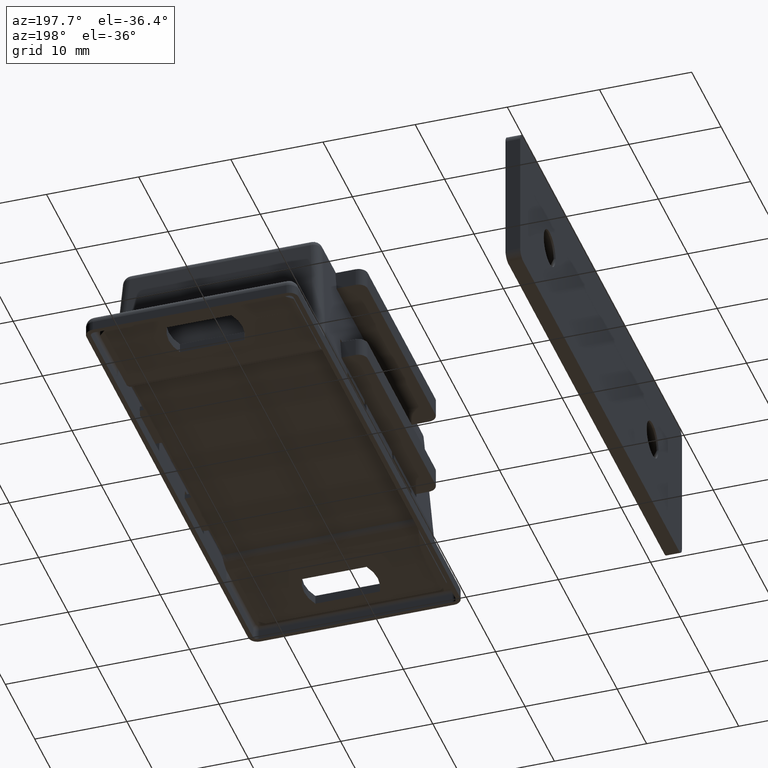
[diagram: clean part render]
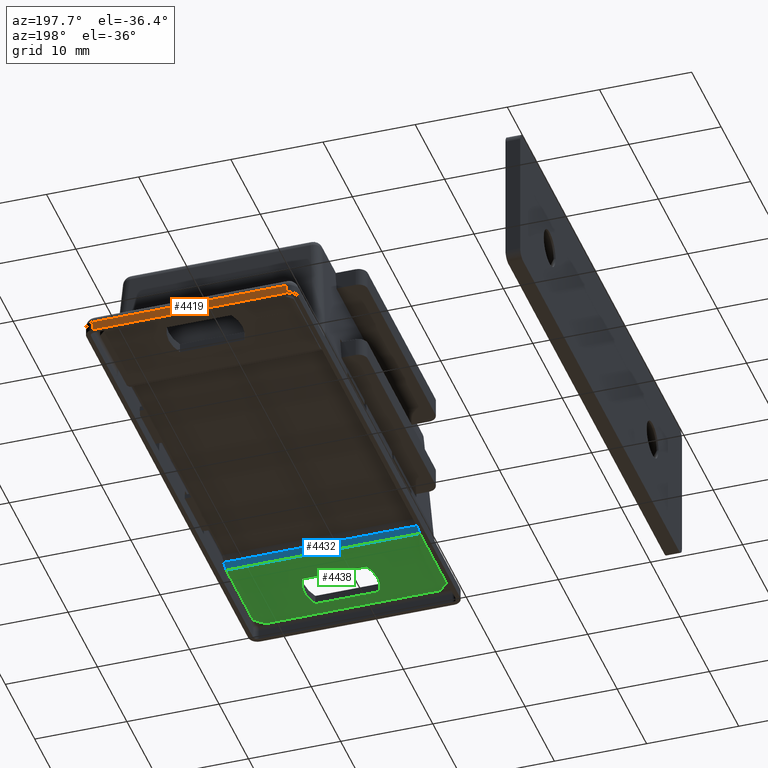
[diagram: same view with three faces highlighted in distinct colors, each labeled with its STEP entity id]
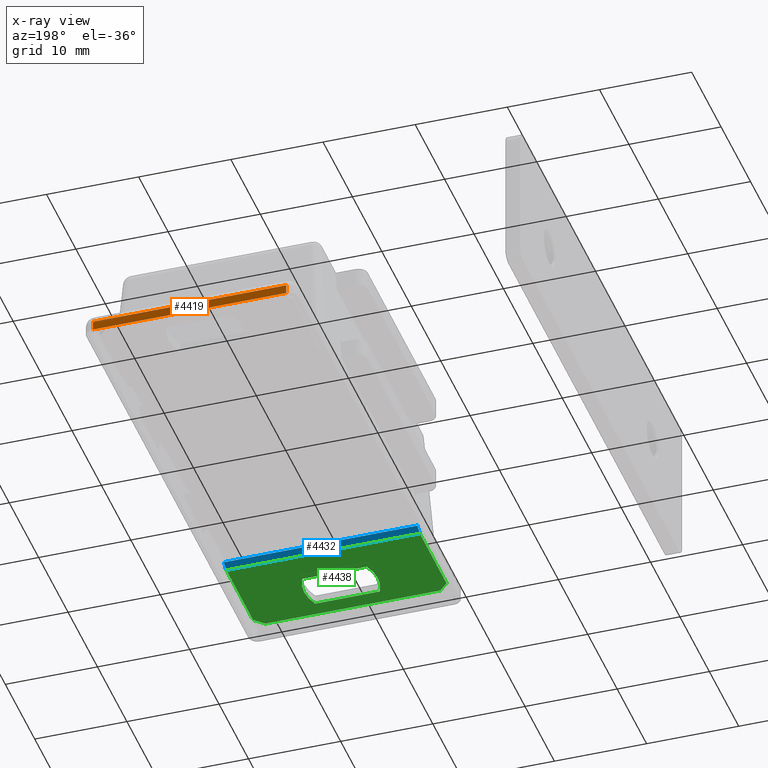
[diagram: x-ray of the same camera — body ghosted, the three highlighted faces saturated]
A machine part, auxiliary view with three faces highlighted in distinct colors.
The next image is the same camera in x-ray (body ghosted, the three faces saturated) — at least one of them is partly hidden behind the body in this view.
Their STEP definitions:

[orange] entity #4419 — the highlighted planar face has unit normal (0, 1, 0).
#478=FACE_OUTER_BOUND('',#731,.T.);
#731=EDGE_LOOP('',(#3500,#3501,#3502,#3503));
#1070=LINE('',#7673,#1530);
#1071=LINE('',#7681,#1531);
#1072=LINE('',#7685,#1532);
#1073=LINE('',#7686,#1533);
#1530=VECTOR('',#5577,21.);
#1531=VECTOR('',#5590,1.);
#1532=VECTOR('',#5595,1.);
#1533=VECTOR('',#5596,21.);
#1988=VERTEX_POINT('',#7670);
#1989=VERTEX_POINT('',#7672);
#1990=VERTEX_POINT('',#7680);
#1991=VERTEX_POINT('',#7684);
#2531=EDGE_CURVE('',#1988,#1989,#1070,.T.);
#2535=EDGE_CURVE('',#1989,#1990,#1071,.T.);
#2537=EDGE_CURVE('',#1991,#1988,#1072,.T.);
#2538=EDGE_CURVE('',#1991,#1990,#1073,.T.);
#3500=ORIENTED_EDGE('',*,*,#2531,.F.);
#3501=ORIENTED_EDGE('',*,*,#2537,.F.);
#3502=ORIENTED_EDGE('',*,*,#2538,.T.);
#3503=ORIENTED_EDGE('',*,*,#2535,.F.);
#4201=PLANE('',#4768);
#4419=ADVANCED_FACE('',(#478),#4201,.T.);
#4768=AXIS2_PLACEMENT_3D('',#7683,#5593,#5594);
#5577=DIRECTION('',(-1.,-1.93082265152201E-16,0.));
#5590=DIRECTION('',(0.,0.,-1.));
#5593=DIRECTION('center_axis',(-1.93082265152201E-16,1.,0.));
#5594=DIRECTION('ref_axis',(-1.,-3.5527136788005E-16,0.));
#5595=DIRECTION('',(0.,0.,1.));
#5596=DIRECTION('',(-1.,-1.93082265152201E-16,0.));
#7670=CARTESIAN_POINT('',(10.5,28.5,1.));
#7672=CARTESIAN_POINT('',(-10.5,28.5,1.));
#7673=CARTESIAN_POINT('',(5.74999999999999,28.5,1.));
#7680=CARTESIAN_POINT('',(-10.5,28.5,0.));
#7681=CARTESIAN_POINT('',(-10.5,28.5,0.));
#7683=CARTESIAN_POINT('Origin',(11.5,28.5,0.));
#7684=CARTESIAN_POINT('',(10.5,28.5,0.));
#7685=CARTESIAN_POINT('',(10.5,28.5,0.));
#7686=CARTESIAN_POINT('',(11.5,28.5,0.));

[blue] entity #4432 — the highlighted planar face has unit normal (-0, -0.4472, 0.8944).
#491=FACE_OUTER_BOUND('',#745,.T.);
#745=EDGE_LOOP('',(#3564,#3565,#3566,#3567));
#1091=LINE('',#7746,#1551);
#1092=LINE('',#7750,#1552);
#1093=LINE('',#7752,#1553);
#1094=LINE('',#7753,#1554);
#1551=VECTOR('',#5658,21.);
#1552=VECTOR('',#5663,0.9270509831248);
#1553=VECTOR('',#5664,0.9270509831248);
#1554=VECTOR('',#5665,21.);
#2010=VERTEX_POINT('',#7743);
#2011=VERTEX_POINT('',#7745);
#2012=VERTEX_POINT('',#7749);
#2013=VERTEX_POINT('',#7751);
#2566=EDGE_CURVE('',#2011,#2010,#1091,.T.);
#2568=EDGE_CURVE('',#2011,#2012,#1092,.T.);
#2569=EDGE_CURVE('',#2013,#2010,#1093,.T.);
#2570=EDGE_CURVE('',#2012,#2013,#1094,.T.);
#3564=ORIENTED_EDGE('',*,*,#2568,.F.);
#3565=ORIENTED_EDGE('',*,*,#2566,.T.);
#3566=ORIENTED_EDGE('',*,*,#2569,.F.);
#3567=ORIENTED_EDGE('',*,*,#2570,.F.);
#4208=PLANE('',#4792);
#4432=ADVANCED_FACE('',(#491),#4208,.F.);
#4792=AXIS2_PLACEMENT_3D('',#7748,#5661,#5662);
#5658=DIRECTION('',(1.,0.,0.));
#5661=DIRECTION('center_axis',(0.,-0.44721359549997,0.89442719099991));
#5662=DIRECTION('ref_axis',(0.,-0.89442719099991,-0.44721359549997));
#5663=DIRECTION('',(0.,-0.89442719099991,-0.44721359549997));
#5664=DIRECTION('',(0.,0.89442719099991,0.44721359549997));
#5665=DIRECTION('',(1.,0.,0.));
#7743=CARTESIAN_POINT('',(10.5,-16.0527864045001,1.41458980337503));
#7745=CARTESIAN_POINT('',(-10.5,-16.0527864045001,1.41458980337503));
#7746=CARTESIAN_POINT('',(0.,-16.0527864045001,1.41458980337503));
#7748=CARTESIAN_POINT('Origin',(0.,-15.77639320225,1.55278640450004));
#7749=CARTESIAN_POINT('',(-10.5,-16.8819660112501,1.00000000000001));
#7750=CARTESIAN_POINT('',(-10.5,-9.48191256489523,4.70002672317756));
#7751=CARTESIAN_POINT('',(10.5,-16.8819660112501,1.00000000000001));
#7752=CARTESIAN_POINT('',(10.5,-9.48191256489523,4.70002672317756));
#7753=CARTESIAN_POINT('',(0.,-16.88196601125,1.00000000000003));

[green] entity #4438 — the highlighted planar face has unit normal (0, 0, -1).
#62=FACE_BOUND('',#752,.T.);
#178=CIRCLE('',#4783,5.31250000000006);
#180=CIRCLE('',#4787,5.31249999999992);
#497=FACE_OUTER_BOUND('',#751,.T.);
#751=EDGE_LOOP('',(#3602,#3603,#3604,#3605,#3606,#3607));
#752=EDGE_LOOP('',(#3608,#3609,#3610,#3611));
#1082=LINE('',#7718,#1542);
#1087=LINE('',#7732,#1547);
#1094=LINE('',#7753,#1554);
#1101=LINE('',#7773,#1561);
#1118=LINE('',#7816,#1578);
#1119=LINE('',#7818,#1579);
#1120=LINE('',#7820,#1580);
#1121=LINE('',#7821,#1581);
#1542=VECTOR('',#5631,7.);
#1547=VECTOR('',#5644,7.);
#1554=VECTOR('',#5665,21.);
#1561=VECTOR('',#5682,9.11803398874991);
#1578=VECTOR('',#5713,9.11803398874991);
#1579=VECTOR('',#5714,1.4142135623731);
#1580=VECTOR('',#5715,19.);
#1581=VECTOR('',#5716,1.4142135623731);
#2000=VERTEX_POINT('',#7716);
#2001=VERTEX_POINT('',#7717);
#2004=VERTEX_POINT('',#7725);
#2006=VERTEX_POINT('',#7731);
#2012=VERTEX_POINT('',#7749);
#2013=VERTEX_POINT('',#7751);
#2021=VERTEX_POINT('',#7772);
#2040=VERTEX_POINT('',#7815);
#2041=VERTEX_POINT('',#7817);
#2042=VERTEX_POINT('',#7819);
#2552=EDGE_CURVE('',#2000,#2001,#1082,.T.);
#2556=EDGE_CURVE('',#2001,#2004,#178,.T.);
#2559=EDGE_CURVE('',#2004,#2006,#1087,.T.);
#2562=EDGE_CURVE('',#2006,#2000,#180,.T.);
#2570=EDGE_CURVE('',#2012,#2013,#1094,.T.);
#2579=EDGE_CURVE('',#2012,#2021,#1101,.T.);
#2600=EDGE_CURVE('',#2040,#2013,#1118,.T.);
#2601=EDGE_CURVE('',#2041,#2040,#1119,.T.);
#2602=EDGE_CURVE('',#2042,#2041,#1120,.T.);
#2603=EDGE_CURVE('',#2021,#2042,#1121,.T.);
#3602=ORIENTED_EDGE('',*,*,#2570,.T.);
#3603=ORIENTED_EDGE('',*,*,#2600,.F.);
#3604=ORIENTED_EDGE('',*,*,#2601,.F.);
#3605=ORIENTED_EDGE('',*,*,#2602,.F.);
#3606=ORIENTED_EDGE('',*,*,#2603,.F.);
#3607=ORIENTED_EDGE('',*,*,#2579,.F.);
#3608=ORIENTED_EDGE('',*,*,#2559,.T.);
#3609=ORIENTED_EDGE('',*,*,#2562,.T.);
#3610=ORIENTED_EDGE('',*,*,#2552,.T.);
#3611=ORIENTED_EDGE('',*,*,#2556,.T.);
#4213=PLANE('',#4804);
#4438=ADVANCED_FACE('',(#497,#62),#4213,.T.);
#4783=AXIS2_PLACEMENT_3D('',#7726,#5637,#5638);
#4787=AXIS2_PLACEMENT_3D('',#7737,#5649,#5650);
#4804=AXIS2_PLACEMENT_3D('',#7814,#5711,#5712);
#5631=DIRECTION('',(-1.,0.,0.));
#5637=DIRECTION('center_axis',(0.,-1.18218192436938E-16,1.));
#5638=DIRECTION('ref_axis',(0.905882352941179,-0.423529411764701,0.));
#5644=DIRECTION('',(1.,0.,0.));
#5649=DIRECTION('center_axis',(0.,-1.18218192436938E-16,1.));
#5650=DIRECTION('ref_axis',(-0.905882352941173,0.423529411764712,0.));
#5665=DIRECTION('',(1.,0.,0.));
#5682=DIRECTION('',(0.,-1.,-1.18218192436938E-16));
#5711=DIRECTION('center_axis',(0.,1.18218192436938E-16,-1.));
#5712=DIRECTION('ref_axis',(0.,1.,1.11022302462516E-16));
#5713=DIRECTION('',(0.,1.,1.18218192436938E-16));
#5714=DIRECTION('',(0.707106781186547,0.707106781186548,8.35928855317751E-17));
#5715=DIRECTION('',(1.,0.,0.));
#5716=DIRECTION('',(0.707106781186547,-0.707106781186548,-8.35928855317751E-17));
#7716=CARTESIAN_POINT('',(3.49999999999999,-20.749999999999,1.00000000000003));
#7717=CARTESIAN_POINT('',(-3.50000000000001,-20.749999999999,1.00000000000003));
#7718=CARTESIAN_POINT('',(-1.75000000000001,-20.749999999999,1.00000000000003));
#7725=CARTESIAN_POINT('',(-3.50000000000002,-25.249999999999,1.00000000000003));
#7726=CARTESIAN_POINT('Origin',(1.31250000000006,-22.999999999999,1.00000000000003));
#7731=CARTESIAN_POINT('',(3.49999999999999,-25.249999999999,1.00000000000003));
#7732=CARTESIAN_POINT('',(1.74999999999999,-25.249999999999,1.00000000000003));
#7737=CARTESIAN_POINT('Origin',(-1.31249999999993,-22.999999999999,1.00000000000003));
#7749=CARTESIAN_POINT('',(-10.5,-16.8819660112501,1.00000000000001));
#7751=CARTESIAN_POINT('',(10.5,-16.8819660112501,1.00000000000001));
#7753=CARTESIAN_POINT('',(0.,-16.88196601125,1.00000000000003));
#7772=CARTESIAN_POINT('',(-10.5,-26.,1.00000000000003));
#7773=CARTESIAN_POINT('',(-10.5,-27.,1.00000000000003));
#7814=CARTESIAN_POINT('Origin',(0.,-27.,1.00000000000003));
#7815=CARTESIAN_POINT('',(10.5,-26.,1.00000000000003));
#7816=CARTESIAN_POINT('',(10.5,-27.,1.00000000000003));
#7817=CARTESIAN_POINT('',(9.5,-27.,1.00000000000003));
#7818=CARTESIAN_POINT('',(7.375,-29.125,1.00000000000003));
#7819=CARTESIAN_POINT('',(-9.5,-27.,1.00000000000003));
#7820=CARTESIAN_POINT('',(0.,-27.,1.00000000000003));
#7821=CARTESIAN_POINT('',(-7.375,-29.125,1.00000000000003));